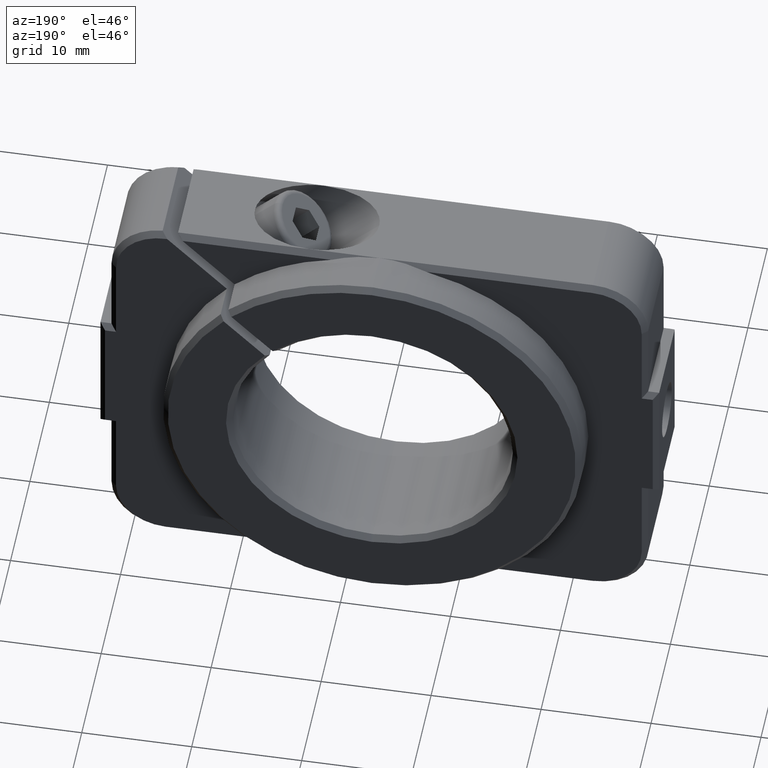
[diagram: clean part render]
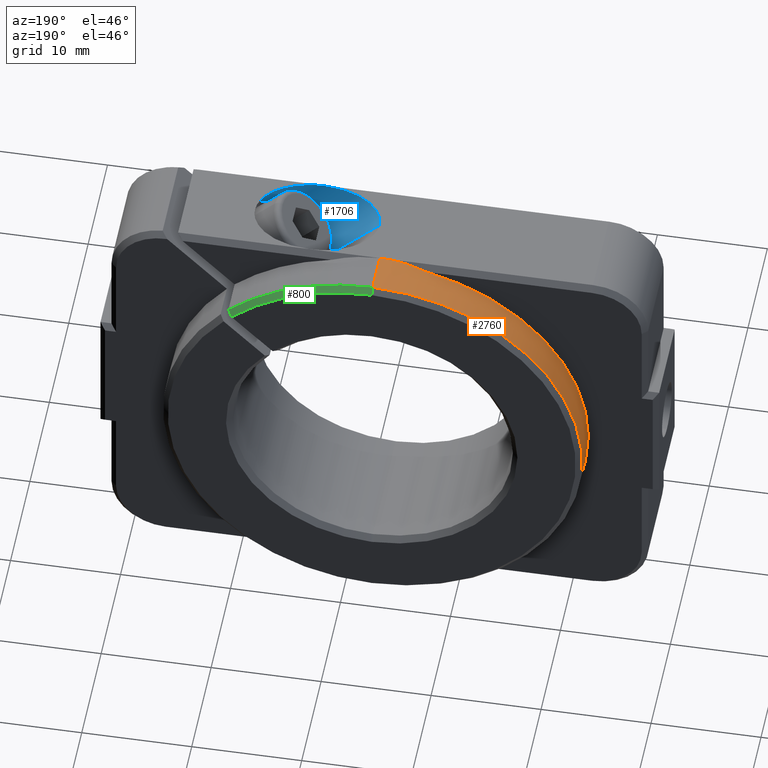
[diagram: same view with three faces highlighted in distinct colors, each labeled with its STEP entity id]
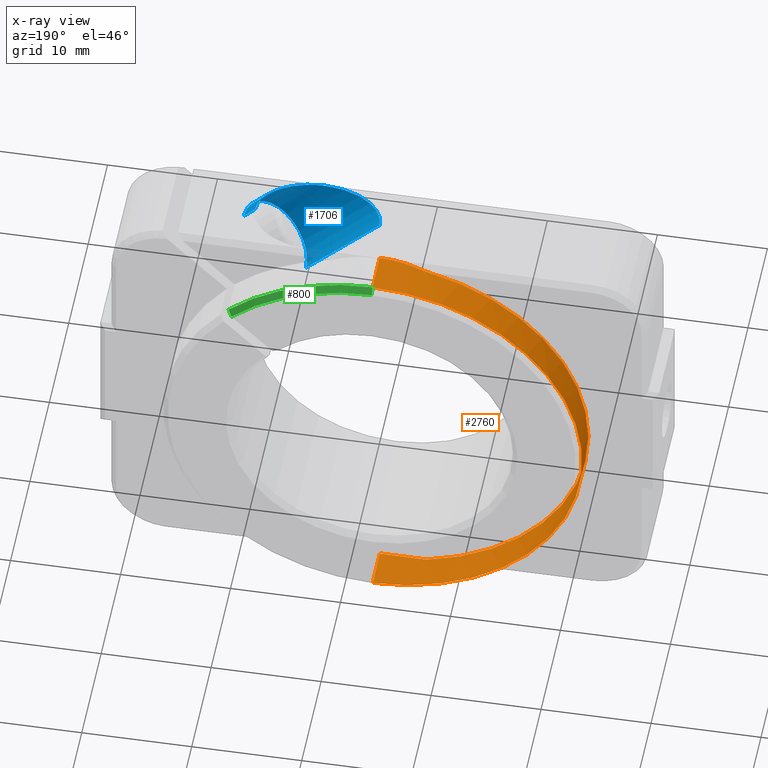
[diagram: x-ray of the same camera — body ghosted, the three highlighted faces saturated]
A machine part, auxiliary view with three faces highlighted in distinct colors.
The next image is the same camera in x-ray (body ghosted, the three faces saturated) — at least one of them is partly hidden behind the body in this view.
Their STEP definitions:

[orange] entity #2760 — the highlighted cylindrical surface (partial cylindrical patch) has radius 19.05 mm, axis along (-0, 1, -0).
#63 = ORIENTED_EDGE ( 'NONE', *, *, #923, .T. ) ;
#65 = DIRECTION ( 'NONE',  ( 0.0000000000000000000, 0.0000000000000000000, 1.000000000000000000 ) ) ;
#213 = ORIENTED_EDGE ( 'NONE', *, *, #1807, .T. ) ;
#402 = CARTESIAN_POINT ( 'NONE',  ( -2.583785812802632100, 4.346217940882592500, 31.74999999999999300 ) ) ;
#421 = ORIENTED_EDGE ( 'NONE', *, *, #2326, .T. ) ;
#430 = CARTESIAN_POINT ( 'NONE',  ( -2.583785812802639600, 4.346217940882606700, 69.84999999999999400 ) ) ;
#436 = CARTESIAN_POINT ( 'NONE',  ( -2.583785812802642700, 8.046217940882591800, 50.79999999999999700 ) ) ;
#482 = LINE ( 'NONE', #1061, #655 ) ;
#494 = VECTOR ( 'NONE', #952, 1000.000000000000000 ) ;
#520 = DIRECTION ( 'NONE',  ( -0.0000000000000000000, 1.000000000000000000, -0.0000000000000000000 ) ) ;
#617 = CARTESIAN_POINT ( 'NONE',  ( -4.045076126082832100, 4.346217940882593400, 31.75000000000000000 ) ) ;
#655 = VECTOR ( 'NONE', #2137, 1000.000000000000000 ) ;
#657 =( BOUNDED_CURVE ( )  B_SPLINE_CURVE ( 3, ( #1731, #2603, #1097, #2827 ),
 .UNSPECIFIED., .F., .F. ) 
 B_SPLINE_CURVE_WITH_KNOTS ( ( 4, 4 ),
 ( 2.911974080068910000, 3.141592653589793100 ),
 .UNSPECIFIED. ) 
 CURVE ( )  GEOMETRIC_REPRESENTATION_ITEM ( )  RATIONAL_B_SPLINE_CURVE ( ( 1.000000000000000000, 0.9956110999740710500, 0.9956110999740710500, 1.000000000000000000 ) ) 
 REPRESENTATION_ITEM ( '' )  );
#748 = CARTESIAN_POINT ( 'NONE',  ( -2.583785812802642700, 4.846217940882606700, 50.79999999999999700 ) ) ;
#768 = CARTESIAN_POINT ( 'NONE',  ( -2.583785812802640500, 8.046217940882591800, 31.75000000000000000 ) ) ;
#794 = VERTEX_POINT ( 'NONE', #2094 ) ;
#923 = EDGE_CURVE ( 'NONE', #1571, #1921, #1086, .T. ) ;
#952 = DIRECTION ( 'NONE',  ( -0.0000000000000000000, 1.000000000000000000, -0.0000000000000000000 ) ) ;
#969 = DIRECTION ( 'NONE',  ( 0.0000000000000000000, 0.0000000000000000000, 1.000000000000000000 ) ) ;
#1061 = CARTESIAN_POINT ( 'NONE',  ( -2.583785812802640500, 16.22040250904145300, 31.75000000000000000 ) ) ;
#1068 = CARTESIAN_POINT ( 'NONE',  ( -5.496746253722262700, 4.513619315446427500, 31.91740137456382300 ) ) ;
#1086 = LINE ( 'NONE', #1194, #494 ) ;
#1087 = DIRECTION ( 'NONE',  ( 0.0000000000000000000, 0.0000000000000000000, 1.000000000000000000 ) ) ;
#1097 = CARTESIAN_POINT ( 'NONE',  ( -4.045076126082829400, 4.346217940882601400, 69.84999999999999400 ) ) ;
#1194 = CARTESIAN_POINT ( 'NONE',  ( -2.583785812802642700, 16.22040250904145300, 69.84999999999999400 ) ) ;
#1200 = CIRCLE ( 'NONE', #2040, 19.04999999999999700 ) ;
#1283 = EDGE_CURVE ( 'NONE', #2061, #794, #1200, .T. ) ;
#1290 = DIRECTION ( 'NONE',  ( 0.0000000000000000000, -1.000000000000000000, 0.0000000000000000000 ) ) ;
#1346 = VERTEX_POINT ( 'NONE', #768 ) ;
#1369 = EDGE_LOOP ( 'NONE', ( #2817, #1778, #2156, #213, #63, #421 ) ) ;
#1373 =( BOUNDED_CURVE ( )  B_SPLINE_CURVE ( 3, ( #402, #617, #1068, #1472 ),
 .UNSPECIFIED., .F., .F. ) 
 B_SPLINE_CURVE_WITH_KNOTS ( ( 4, 4 ),
 ( 3.141592653589792700, 3.371211227110677100 ),
 .UNSPECIFIED. ) 
 CURVE ( )  GEOMETRIC_REPRESENTATION_ITEM ( )  RATIONAL_B_SPLINE_CURVE ( ( 1.000000000000000000, 0.9956110999740708200, 0.9956110999740708200, 1.000000000000000000 ) ) 
 REPRESENTATION_ITEM ( '' )  );
#1406 = DIRECTION ( 'NONE',  ( -0.0000000000000000000, 1.000000000000000000, -0.0000000000000000000 ) ) ;
#1472 = CARTESIAN_POINT ( 'NONE',  ( -6.919682490538415100, 4.846217940882606700, 32.25000000000000000 ) ) ;
#1545 = VERTEX_POINT ( 'NONE', #2416 ) ;
#1565 = CYLINDRICAL_SURFACE ( 'NONE', #1683, 19.04999999999999700 ) ;
#1571 = VERTEX_POINT ( 'NONE', #430 ) ;
#1683 = AXIS2_PLACEMENT_3D ( 'NONE', #2255, #520, #65 ) ;
#1701 = CARTESIAN_POINT ( 'NONE',  ( -6.919682490538415100, 4.846217940882606700, 32.25000000000000000 ) ) ;
#1731 = CARTESIAN_POINT ( 'NONE',  ( -6.919682490538395600, 4.846217940882606700, 69.34999999999999400 ) ) ;
#1778 = ORIENTED_EDGE ( 'NONE', *, *, #2583, .T. ) ;
#1807 = EDGE_CURVE ( 'NONE', #794, #1571, #657, .T. ) ;
#1921 = VERTEX_POINT ( 'NONE', #2293 ) ;
#2014 = FACE_OUTER_BOUND ( 'NONE', #1369, .T. ) ;
#2040 = AXIS2_PLACEMENT_3D ( 'NONE', #748, #1406, #969 ) ;
#2061 = VERTEX_POINT ( 'NONE', #1701 ) ;
#2094 = CARTESIAN_POINT ( 'NONE',  ( -6.919682490538395600, 4.846217940882606700, 69.34999999999999400 ) ) ;
#2110 = AXIS2_PLACEMENT_3D ( 'NONE', #436, #1290, #1087 ) ;
#2137 = DIRECTION ( 'NONE',  ( -0.0000000000000000000, 1.000000000000000000, -0.0000000000000000000 ) ) ;
#2156 = ORIENTED_EDGE ( 'NONE', *, *, #1283, .T. ) ;
#2255 = CARTESIAN_POINT ( 'NONE',  ( -2.583785812802642700, 16.22040250904145300, 50.79999999999999700 ) ) ;
#2293 = CARTESIAN_POINT ( 'NONE',  ( -2.583785812802642700, 8.046217940882591800, 69.84999999999999400 ) ) ;
#2326 = EDGE_CURVE ( 'NONE', #1921, #1346, #2395, .T. ) ;
#2384 = EDGE_CURVE ( 'NONE', #1545, #1346, #482, .T. ) ;
#2395 = CIRCLE ( 'NONE', #2110, 19.04999999999999700 ) ;
#2416 = CARTESIAN_POINT ( 'NONE',  ( -2.583785812802632100, 4.346217940882592500, 31.74999999999999300 ) ) ;
#2583 = EDGE_CURVE ( 'NONE', #1545, #2061, #1373, .T. ) ;
#2603 = CARTESIAN_POINT ( 'NONE',  ( -5.496746253722252900, 4.513619315446433700, 69.68259862543617100 ) ) ;
#2760 = ADVANCED_FACE ( 'NONE', ( #2014 ), #1565, .T. ) ;
#2817 = ORIENTED_EDGE ( 'NONE', *, *, #2384, .F. ) ;
#2827 = CARTESIAN_POINT ( 'NONE',  ( -2.583785812802639600, 4.346217940882606700, 69.84999999999999400 ) ) ;

[blue] entity #1706 — the highlighted cylindrical surface (partial cylindrical patch) has radius 4 mm, axis along (0.7071, -0, -0.7071).
#27 = FACE_OUTER_BOUND ( 'NONE', #1713, .T. ) ;
#50 = ORIENTED_EDGE ( 'NONE', *, *, #2568, .T. ) ;
#57 = CARTESIAN_POINT ( 'NONE',  ( 4.840835389656038300, 0.3462179408826055500, 63.17436867076463600 ) ) ;
#97 = EDGE_CURVE ( 'NONE', #273, #1432, #2307, .T. ) ;
#273 = VERTEX_POINT ( 'NONE', #1209 ) ;
#300 = ORIENTED_EDGE ( 'NONE', *, *, #1767, .F. ) ;
#314 = CARTESIAN_POINT ( 'NONE',  ( 25.15796690635254900, 0.3462179408826060500, 54.17094565305301800 ) ) ;
#348 = VERTEX_POINT ( 'NONE', #1274 ) ;
#411 = CARTESIAN_POINT ( 'NONE',  ( 22.32953978160637500, 0.3462179408826055500, 51.34251852830681900 ) ) ;
#516 = CARTESIAN_POINT ( 'NONE',  ( 3.822058309913011400, -3.653782059117392000, 69.84999999999999400 ) ) ;
#527 = ORIENTED_EDGE ( 'NONE', *, *, #1931, .F. ) ;
#674 = ORIENTED_EDGE ( 'NONE', *, *, #97, .F. ) ;
#727 = LINE ( 'NONE', #2811, #1717 ) ;
#728 = CIRCLE ( 'NONE', #1933, 4.000000000000001800 ) ;
#822 = CARTESIAN_POINT ( 'NONE',  ( 3.822058309913011400, -3.653782059117392000, 69.84999999999999400 ) ) ;
#856 = DIRECTION ( 'NONE',  ( 0.7071067811865512400, -0.0000000000000000000, -0.7071067811865439100 ) ) ;
#867 = CYLINDRICAL_SURFACE ( 'NONE', #1674, 3.999999999999995600 ) ;
#971 = VERTEX_POINT ( 'NONE', #1864 ) ;
#973 = VECTOR ( 'NONE', #1839, 1000.000000000000000 ) ;
#1160 = CARTESIAN_POINT ( 'NONE',  ( 9.478912559405417300, -1.996927809625012700, 69.84999999999999400 ) ) ;
#1209 = CARTESIAN_POINT ( 'NONE',  ( 9.478912559405410200, 0.3462179408826060500, 69.84999999999999400 ) ) ;
#1221 = CARTESIAN_POINT ( 'NONE',  ( -1.834795939579394900, -1.996927809625012900, 69.84999999999999400 ) ) ;
#1274 = CARTESIAN_POINT ( 'NONE',  ( -1.834795939579397100, 0.3462179408826055500, 69.84999999999999400 ) ) ;
#1397 = CARTESIAN_POINT ( 'NONE',  ( 3.822058309913011400, -3.653782059117392000, 69.84999999999999400 ) ) ;
#1414 = CARTESIAN_POINT ( 'NONE',  ( 0.5083498109282359500, -3.653782059117392400, 69.84999999999999400 ) ) ;
#1432 = VERTEX_POINT ( 'NONE', #822 ) ;
#1533 = LINE ( 'NONE', #314, #973 ) ;
#1674 = AXIS2_PLACEMENT_3D ( 'NONE', #411, #1698, #2561 ) ;
#1698 = DIRECTION ( 'NONE',  ( 0.7071067811865512400, -0.0000000000000000000, -0.7071067811865439100 ) ) ;
#1705 = CARTESIAN_POINT ( 'NONE',  ( 7.669262514402211300, 0.3462179408826055500, 66.00279579551082100 ) ) ;
#1706 = ADVANCED_FACE ( 'NONE', ( #27 ), #867, .F. ) ;
#1713 = EDGE_LOOP ( 'NONE', ( #674, #2433, #50, #300, #527 ) ) ;
#1717 = VECTOR ( 'NONE', #1746, 1000.000000000000000 ) ;
#1746 = DIRECTION ( 'NONE',  ( 0.7071067811865512400, -0.0000000000000000000, -0.7071067811865439100 ) ) ;
#1767 = EDGE_CURVE ( 'NONE', #348, #1890, #727, .T. ) ;
#1839 = DIRECTION ( 'NONE',  ( 0.7071067811865512400, -0.0000000000000000000, -0.7071067811865439100 ) ) ;
#1864 = CARTESIAN_POINT ( 'NONE',  ( 10.49768963914838500, 0.3462179408826060500, 68.83122292025703400 ) ) ;
#1890 = VERTEX_POINT ( 'NONE', #57 ) ;
#1931 = EDGE_CURVE ( 'NONE', #1432, #348, #2569, .T. ) ;
#1933 = AXIS2_PLACEMENT_3D ( 'NONE', #1705, #856, #2149 ) ;
#2149 = DIRECTION ( 'NONE',  ( -0.7071067811865435800, 0.0000000000000000000, -0.7071067811865515700 ) ) ;
#2219 = EDGE_CURVE ( 'NONE', #273, #971, #1533, .T. ) ;
#2272 = CARTESIAN_POINT ( 'NONE',  ( 9.478912559405410200, 0.3462179408826060500, 69.84999999999999400 ) ) ;
#2307 =( BOUNDED_CURVE ( )  B_SPLINE_CURVE ( 3, ( #2272, #1160, #2687, #1397 ),
 .UNSPECIFIED., .F., .F. ) 
 B_SPLINE_CURVE_WITH_KNOTS ( ( 4, 4 ),
 ( 0.0000000000000000000, 1.570796326794896600 ),
 .UNSPECIFIED. ) 
 CURVE ( )  GEOMETRIC_REPRESENTATION_ITEM ( )  RATIONAL_B_SPLINE_CURVE ( ( 1.000000000000000000, 0.8047378541243649400, 0.8047378541243649400, 1.000000000000000000 ) ) 
 REPRESENTATION_ITEM ( '' )  );
#2433 = ORIENTED_EDGE ( 'NONE', *, *, #2219, .T. ) ;
#2561 = DIRECTION ( 'NONE',  ( -0.7071067811865440200, 0.0000000000000000000, -0.7071067811865510100 ) ) ;
#2568 = EDGE_CURVE ( 'NONE', #971, #1890, #728, .T. ) ;
#2569 =( BOUNDED_CURVE ( )  B_SPLINE_CURVE ( 3, ( #516, #1414, #1221, #2762 ),
 .UNSPECIFIED., .F., .T. ) 
 B_SPLINE_CURVE_WITH_KNOTS ( ( 4, 4 ),
 ( 1.570796326794896600, 3.141592653589793100 ),
 .UNSPECIFIED. ) 
 CURVE ( )  GEOMETRIC_REPRESENTATION_ITEM ( )  RATIONAL_B_SPLINE_CURVE ( ( 1.000000000000000000, 0.8047378541243649400, 0.8047378541243649400, 1.000000000000000000 ) ) 
 REPRESENTATION_ITEM ( '' )  );
#2687 = CARTESIAN_POINT ( 'NONE',  ( 7.135766808897788100, -3.653782059117392400, 69.84999999999999400 ) ) ;
#2762 = CARTESIAN_POINT ( 'NONE',  ( -1.834795939579397100, 0.3462179408826055500, 69.84999999999999400 ) ) ;
#2811 = CARTESIAN_POINT ( 'NONE',  ( 19.50111265686020100, 0.3462179408826055500, 48.51409140356062000 ) ) ;

[green] entity #800 — the highlighted conical surface has half-angle 45 deg.
#133 = AXIS2_PLACEMENT_3D ( 'NONE', #1854, #1216, #1402 ) ;
#249 = CARTESIAN_POINT ( 'NONE',  ( 10.17472585135419800, 8.546217940882606000, 64.26561844534343500 ) ) ;
#261 = VERTEX_POINT ( 'NONE', #570 ) ;
#303 = CARTESIAN_POINT ( 'NONE',  ( 10.52840437057723800, 8.046217940882591800, 64.61929696456647300 ) ) ;
#339 = CARTESIAN_POINT ( 'NONE',  ( -2.583785812802640500, 8.546217940882606000, 69.34999999999998000 ) ) ;
#415 = ORIENTED_EDGE ( 'NONE', *, *, #443, .F. ) ;
#422 = EDGE_CURVE ( 'NONE', #2752, #1921, #2447, .T. ) ;
#443 = EDGE_CURVE ( 'NONE', #261, #2752, #1876, .T. ) ;
#473 = DIRECTION ( 'NONE',  ( -2.663551793822656800E-015, 0.0000000000000000000, 1.000000000000000000 ) ) ;
#570 = CARTESIAN_POINT ( 'NONE',  ( 10.17472585135419800, 8.546217940882606000, 64.26561844534343500 ) ) ;
#718 = CARTESIAN_POINT ( 'NONE',  ( -2.583785812802642700, 8.046217940882591800, 50.79999999999999700 ) ) ;
#800 = ADVANCED_FACE ( 'NONE', ( #1446 ), #951, .T. ) ;
#812 = EDGE_CURVE ( 'NONE', #2536, #261, #1057, .T. ) ;
#813 = EDGE_LOOP ( 'NONE', ( #947, #2058, #2170, #415 ) ) ;
#947 = ORIENTED_EDGE ( 'NONE', *, *, #812, .F. ) ;
#951 = CONICAL_SURFACE ( 'NONE', #1816, 18.54999999999998300, 0.7853981633974482800 ) ;
#985 = CARTESIAN_POINT ( 'NONE',  ( -2.583785812802642700, 8.546217940882606000, 50.79999999999999700 ) ) ;
#1042 = CARTESIAN_POINT ( 'NONE',  ( -2.583785812802640500, 8.546217940882606000, 69.34999999999998000 ) ) ;
#1057 = CIRCLE ( 'NONE', #133, 18.54999999999998300 ) ;
#1156 = CARTESIAN_POINT ( 'NONE',  ( 10.41051207830111700, 8.212885382051952700, 64.50140467229034900 ) ) ;
#1216 = DIRECTION ( 'NONE',  ( 0.0000000000000000000, 1.000000000000000000, 0.0000000000000000000 ) ) ;
#1218 = DIRECTION ( 'NONE',  ( 8.659560562354932900E-017, -0.7071067811865474600, 0.7071067811865474600 ) ) ;
#1362 = EDGE_CURVE ( 'NONE', #2536, #1921, #2637, .T. ) ;
#1371 = DIRECTION ( 'NONE',  ( 0.0000000000000000000, -1.000000000000000000, 0.0000000000000000000 ) ) ;
#1402 = DIRECTION ( 'NONE',  ( 0.0000000000000000000, 0.0000000000000000000, 1.000000000000000000 ) ) ;
#1446 = FACE_OUTER_BOUND ( 'NONE', #813, .T. ) ;
#1804 = CARTESIAN_POINT ( 'NONE',  ( 10.52840437057723800, 8.046217940882591800, 64.61929696456647300 ) ) ;
#1816 = AXIS2_PLACEMENT_3D ( 'NONE', #985, #2501, #2712 ) ;
#1854 = CARTESIAN_POINT ( 'NONE',  ( -2.583785812802642700, 8.546217940882606000, 50.79999999999999700 ) ) ;
#1876 = B_SPLINE_CURVE_WITH_KNOTS ( 'NONE', 3,
 ( #249, #2672, #1156, #1804 ),
 .UNSPECIFIED., .F., .F.,
 ( 4, 4 ),
 ( 0.0000000000000000000, 0.0007072319208856572300 ),
 .UNSPECIFIED. ) ;
#1921 = VERTEX_POINT ( 'NONE', #2293 ) ;
#2003 = AXIS2_PLACEMENT_3D ( 'NONE', #718, #1371, #473 ) ;
#2058 = ORIENTED_EDGE ( 'NONE', *, *, #1362, .T. ) ;
#2170 = ORIENTED_EDGE ( 'NONE', *, *, #422, .F. ) ;
#2293 = CARTESIAN_POINT ( 'NONE',  ( -2.583785812802642700, 8.046217940882591800, 69.84999999999999400 ) ) ;
#2447 = CIRCLE ( 'NONE', #2003, 19.04999999999999700 ) ;
#2500 = VECTOR ( 'NONE', #1218, 1000.000000000000100 ) ;
#2501 = DIRECTION ( 'NONE',  ( 0.0000000000000000000, -1.000000000000000000, 0.0000000000000000000 ) ) ;
#2536 = VERTEX_POINT ( 'NONE', #1042 ) ;
#2637 = LINE ( 'NONE', #339, #2500 ) ;
#2672 = CARTESIAN_POINT ( 'NONE',  ( 10.29261925331921300, 8.379552069605939100, 64.38351184730845500 ) ) ;
#2712 = DIRECTION ( 'NONE',  ( 0.0000000000000000000, 0.0000000000000000000, -1.000000000000000000 ) ) ;
#2752 = VERTEX_POINT ( 'NONE', #303 ) ;